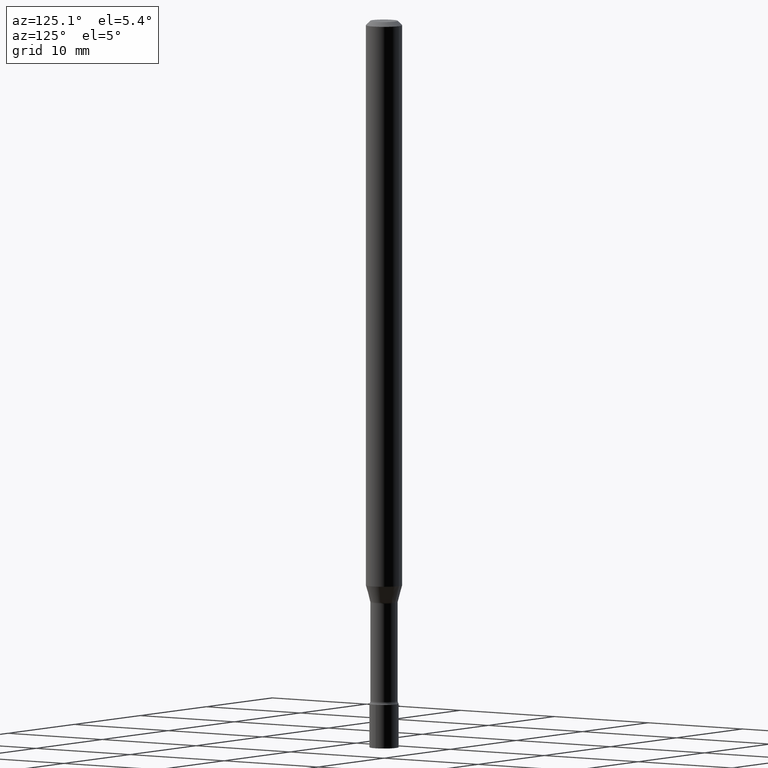
[diagram: clean part render]
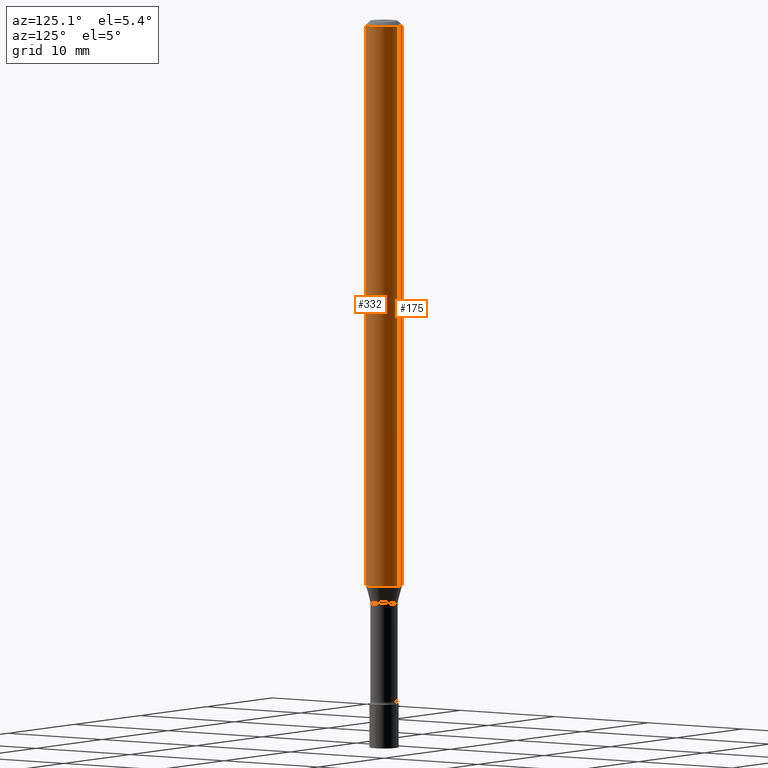
[diagram: same view with one multi-face feature highlighted, each face labeled with its STEP entity id]
A machine part, auxiliary view. The highlighted faces form ONE feature: a constant-radius fillet chain: 2 tangent blend faces with common blend radius 1.5875 mm. The faces share edges in the B-rep.
Their STEP definitions:
[1] entity #332 (Cylinder):
#12 = EDGE_LOOP ( 'NONE', ( #369, #102, #20, #221 ) ) ;
#18 = DIRECTION ( 'NONE',  ( -2.445450007848855434E-29, 3.491508259130634782E-15, 1.000000000000000000 ) ) ;
#20 = ORIENTED_EDGE ( 'NONE', *, *, #195, .F. ) ;
#22 = CARTESIAN_POINT ( 'NONE',  ( 0.000000000000000000, 0.000000000000000000, 0.000000000000000000 ) ) ;
#27 = FACE_OUTER_BOUND ( 'NONE', #12, .T. ) ;
#30 = AXIS2_PLACEMENT_3D ( 'NONE', #384, #178, #429 ) ;
#38 = CARTESIAN_POINT ( 'NONE',  ( 4.440892098500625669E-16, 0.06250000000000000000, -2.182192661956646492E-16 ) ) ;
#41 = EDGE_CURVE ( 'NONE', #428, #398, #442, .T. ) ;
#62 = VERTEX_POINT ( 'NONE', #368 ) ;
#69 = CARTESIAN_POINT ( 'NONE',  ( -4.364351673553912750E-16, -0.06250000000000005551, -0.01499999999999981209 ) ) ;
#83 = DIRECTION ( 'NONE',  ( -2.445450007848855714E-29, 3.491508259130634782E-15, 1.000000000000000000 ) ) ;
#95 = DIRECTION ( 'NONE',  ( -6.982962677686265922E-15, -1.000000000000000000, 3.491508259130634388E-15 ) ) ;
#98 = DIRECTION ( 'NONE',  ( -2.445450007848855714E-29, 3.491508259130634782E-15, 1.000000000000000000 ) ) ;
#102 = ORIENTED_EDGE ( 'NONE', *, *, #41, .T. ) ;
#161 = AXIS2_PLACEMENT_3D ( 'NONE', #276, #83, #444 ) ;
#178 = DIRECTION ( 'NONE',  ( -2.445450007848855714E-29, 3.491508259130634782E-15, 1.000000000000000000 ) ) ;
#185 = CARTESIAN_POINT ( 'NONE',  ( 4.440892098501102436E-16, 0.06249999999999325540, -1.942153212482682800 ) ) ;
#188 = DIRECTION ( 'NONE',  ( -2.445450007848855434E-29, 3.491508259130634782E-15, 1.000000000000000000 ) ) ;
#195 = EDGE_CURVE ( 'NONE', #254, #398, #211, .T. ) ;
#211 = CIRCLE ( 'NONE', #161, 0.06250000000000000000 ) ;
#220 = CARTESIAN_POINT ( 'NONE',  ( 4.440892098501103423E-16, 0.06249999999999993755, -0.01500000000000024751 ) ) ;
#221 = ORIENTED_EDGE ( 'NONE', *, *, #390, .F. ) ;
#248 = VECTOR ( 'NONE', #18, 39.37007874015748143 ) ;
#254 = VERTEX_POINT ( 'NONE', #69 ) ;
#265 = LINE ( 'NONE', #440, #482 ) ;
#269 = EDGE_CURVE ( 'NONE', #62, #428, #327, .T. ) ;
#276 = CARTESIAN_POINT ( 'NONE',  ( 3.668175011773291051E-31, -5.237262388695962379E-17, -0.01500000000000003067 ) ) ;
#327 = CIRCLE ( 'NONE', #30, 0.06250000000000000000 ) ;
#332 = ADVANCED_FACE ( 'NONE', ( #27 ), #346, .T. ) ;
#346 = CYLINDRICAL_SURFACE ( 'NONE', #416, 0.06250000000000000000 ) ;
#368 = CARTESIAN_POINT ( 'NONE',  ( -4.364351673553439433E-16, -0.06250000000000675848, -1.942153212482682134 ) ) ;
#369 = ORIENTED_EDGE ( 'NONE', *, *, #269, .T. ) ;
#384 = CARTESIAN_POINT ( 'NONE',  ( 4.749438588709456115E-29, -6.781043981880380438E-15, -1.942153212482682578 ) ) ;
#390 = EDGE_CURVE ( 'NONE', #62, #254, #265, .T. ) ;
#398 = VERTEX_POINT ( 'NONE', #220 ) ;
#416 = AXIS2_PLACEMENT_3D ( 'NONE', #22, #98, #95 ) ;
#428 = VERTEX_POINT ( 'NONE', #185 ) ;
#429 = DIRECTION ( 'NONE',  ( -6.982962677686265922E-15, -1.000000000000000000, 4.370956789862821150E-15 ) ) ;
#440 = CARTESIAN_POINT ( 'NONE',  ( -4.364351673553916201E-16, -0.06250000000000000000, 2.182192661956646492E-16 ) ) ;
#442 = LINE ( 'NONE', #38, #248 ) ;
#444 = DIRECTION ( 'NONE',  ( -6.982962677686265922E-15, -1.000000000000000000, 3.483106191921935554E-15 ) ) ;
#482 = VECTOR ( 'NONE', #188, 39.37007874015748143 ) ;
[2] entity #175 (Cylinder):
#6 = FACE_OUTER_BOUND ( 'NONE', #45, .T. ) ;
#16 = DIRECTION ( 'NONE',  ( -2.445450007848855714E-29, 3.491508259130634782E-15, 1.000000000000000000 ) ) ;
#18 = DIRECTION ( 'NONE',  ( -2.445450007848855434E-29, 3.491508259130634782E-15, 1.000000000000000000 ) ) ;
#38 = CARTESIAN_POINT ( 'NONE',  ( 4.440892098500625669E-16, 0.06250000000000000000, -2.182192661956646492E-16 ) ) ;
#41 = EDGE_CURVE ( 'NONE', #428, #398, #442, .T. ) ;
#45 = EDGE_LOOP ( 'NONE', ( #318, #348, #120, #413 ) ) ;
#62 = VERTEX_POINT ( 'NONE', #368 ) ;
#69 = CARTESIAN_POINT ( 'NONE',  ( -4.364351673553912750E-16, -0.06250000000000005551, -0.01499999999999981209 ) ) ;
#76 = CIRCLE ( 'NONE', #376, 0.06250000000000000000 ) ;
#120 = ORIENTED_EDGE ( 'NONE', *, *, #390, .T. ) ;
#157 = CYLINDRICAL_SURFACE ( 'NONE', #362, 0.06250000000000000000 ) ;
#175 = ADVANCED_FACE ( 'NONE', ( #6 ), #157, .T. ) ;
#185 = CARTESIAN_POINT ( 'NONE',  ( 4.440892098501102436E-16, 0.06249999999999325540, -1.942153212482682800 ) ) ;
#188 = DIRECTION ( 'NONE',  ( -2.445450007848855434E-29, 3.491508259130634782E-15, 1.000000000000000000 ) ) ;
#210 = DIRECTION ( 'NONE',  ( -6.982962677686265922E-15, -1.000000000000000000, 3.483106191921935554E-15 ) ) ;
#220 = CARTESIAN_POINT ( 'NONE',  ( 4.440892098501103423E-16, 0.06249999999999993755, -0.01500000000000024751 ) ) ;
#239 = EDGE_CURVE ( 'NONE', #428, #62, #255, .T. ) ;
#248 = VECTOR ( 'NONE', #18, 39.37007874015748143 ) ;
#254 = VERTEX_POINT ( 'NONE', #69 ) ;
#255 = CIRCLE ( 'NONE', #353, 0.06250000000000000000 ) ;
#258 = CARTESIAN_POINT ( 'NONE',  ( 3.668175011773291051E-31, -5.237262388695962379E-17, -0.01500000000000003067 ) ) ;
#265 = LINE ( 'NONE', #440, #482 ) ;
#318 = ORIENTED_EDGE ( 'NONE', *, *, #41, .F. ) ;
#325 = EDGE_CURVE ( 'NONE', #398, #254, #76, .T. ) ;
#339 = DIRECTION ( 'NONE',  ( -2.445450007848855714E-29, 3.491508259130634782E-15, 1.000000000000000000 ) ) ;
#348 = ORIENTED_EDGE ( 'NONE', *, *, #239, .T. ) ;
#353 = AXIS2_PLACEMENT_3D ( 'NONE', #456, #409, #372 ) ;
#362 = AXIS2_PLACEMENT_3D ( 'NONE', #382, #16, #449 ) ;
#368 = CARTESIAN_POINT ( 'NONE',  ( -4.364351673553439433E-16, -0.06250000000000675848, -1.942153212482682134 ) ) ;
#372 = DIRECTION ( 'NONE',  ( -6.982962677686265922E-15, -1.000000000000000000, 4.370956789862821150E-15 ) ) ;
#376 = AXIS2_PLACEMENT_3D ( 'NONE', #258, #339, #210 ) ;
#382 = CARTESIAN_POINT ( 'NONE',  ( 0.000000000000000000, 0.000000000000000000, 0.000000000000000000 ) ) ;
#390 = EDGE_CURVE ( 'NONE', #62, #254, #265, .T. ) ;
#398 = VERTEX_POINT ( 'NONE', #220 ) ;
#409 = DIRECTION ( 'NONE',  ( -2.445450007848855714E-29, 3.491508259130634782E-15, 1.000000000000000000 ) ) ;
#413 = ORIENTED_EDGE ( 'NONE', *, *, #325, .F. ) ;
#428 = VERTEX_POINT ( 'NONE', #185 ) ;
#440 = CARTESIAN_POINT ( 'NONE',  ( -4.364351673553916201E-16, -0.06250000000000000000, 2.182192661956646492E-16 ) ) ;
#442 = LINE ( 'NONE', #38, #248 ) ;
#449 = DIRECTION ( 'NONE',  ( -6.982962677686265922E-15, -1.000000000000000000, 3.491508259130634388E-15 ) ) ;
#456 = CARTESIAN_POINT ( 'NONE',  ( 4.749438588709456115E-29, -6.781043981880380438E-15, -1.942153212482682578 ) ) ;
#482 = VECTOR ( 'NONE', #188, 39.37007874015748143 ) ;